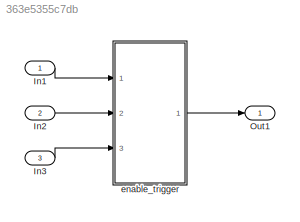
MODEL slx_363e5355c7db
KIND model
CONFIG AbsTol = auto
CONFIG EnableMultiTasking = off
CONFIG FixedStep = auto
CONFIG MaxStep = auto
CONFIG MinStep = auto
CONFIG RelTol = 1e-3
CONFIG SampleTimeConstraint = Unconstrained
CONFIG Solver = FixedStepDiscrete
CONFIG SolverName = FixedStepDiscrete
CONFIG StartTime = 0.0
CONFIG StopTime = 10.0
BLOCK [Inport] In1
  IconDisplay = Port number
BLOCK [Inport] In2
  IconDisplay = Port number
  Port = 2
BLOCK [Inport] In3
  IconDisplay = Port number
  Port = 3
BLOCK [Outport] Out1
  IconDisplay = Port number
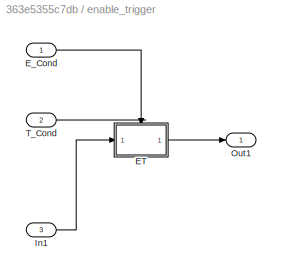
BLOCK [SubSystem] enable_trigger
  AncestorBlock = Block_TestLib/enable_trigger
  Ports = [3, 1]
  RequestExecContextInheritance = off
  Variant = off
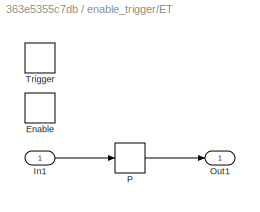
BLOCK [SubSystem] enable_trigger/ET
  Ports = [1, 1, 1, 1]
  RequestExecContextInheritance = off
  TreatAsAtomicUnit = on
  Variant = off
BLOCK [EnablePort] enable_trigger/ET/Enable
  Ports = []
BLOCK [Inport] enable_trigger/ET/In1
  IconDisplay = Port number
  OutDataTypeStr = double
  PortDimensions = [1,2]
BLOCK [Outport] enable_trigger/ET/Out1
  IconDisplay = Port number
BLOCK [Reshape] enable_trigger/ET/P
  OutputDimensionality = Customize
  OutputDimensions = [1,2]
  Ports = [1, 1]
BLOCK [TriggerPort] enable_trigger/ET/Trigger
  Ports = []
  StatesWhenEnabling = held
  VariantControl = Variant
BLOCK [Inport] enable_trigger/E_Cond
  IconDisplay = Port number
  OutDataTypeStr = boolean
BLOCK [Inport] enable_trigger/In1
  IconDisplay = Port number
  Port = 3
BLOCK [Outport] enable_trigger/Out1
  IconDisplay = Port number
BLOCK [Inport] enable_trigger/T_Cond
  IconDisplay = Port number
  OutDataTypeStr = boolean
  Port = 2
LINE In1:1 -> enable_trigger:1
LINE In2:1 -> enable_trigger:2
LINE In3:1 -> enable_trigger:3
LINE enable_trigger:1 -> Out1:1
